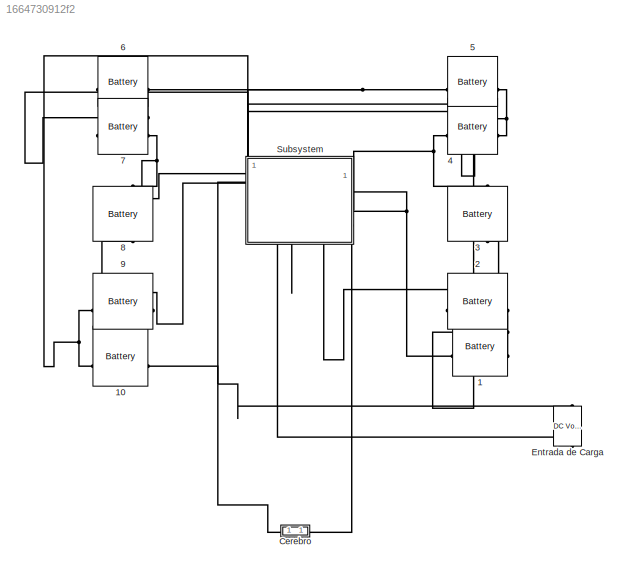
MODEL slx_1664730912f2
KIND model
CONFIG AbsTol = auto
CONFIG EnableMultiTasking = off
CONFIG FixedStep = auto
CONFIG MaxStep = auto
CONFIG MinStep = auto
CONFIG RelTol = 1e-3
CONFIG SampleTimeConstraint = Unconstrained
CONFIG SolverName = VariableStepAuto
CONFIG StartTime = 0.0
CONFIG StopTime = 10.0
BLOCK [Reference] 1  REF=batteryecm_lib/Battery
  LibrarySourceBlock = batt_lib/Cells/Battery
  SourceBlock = batteryecm_lib/Battery
  SourceType = Battery
BLOCK [Reference] 10  REF=batteryecm_lib/Battery
  LibrarySourceBlock = batt_lib/Cells/Battery
  SourceBlock = batteryecm_lib/Battery
  SourceType = Battery
BLOCK [Reference] 2  REF=batteryecm_lib/Battery
  LibrarySourceBlock = batt_lib/Cells/Battery
  NameLocation = top
  SourceBlock = batteryecm_lib/Battery
  SourceType = Battery
BLOCK [Reference] 3  REF=batteryecm_lib/Battery
  LibrarySourceBlock = batt_lib/Cells/Battery
  NameLocation = right
  SourceBlock = batteryecm_lib/Battery
  SourceType = Battery
BLOCK [Reference] 4  REF=batteryecm_lib/Battery
  LibrarySourceBlock = batt_lib/Cells/Battery
  SourceBlock = batteryecm_lib/Battery
  SourceType = Battery
BLOCK [Reference] 5  REF=batteryecm_lib/Battery
  LibrarySourceBlock = batt_lib/Cells/Battery
  NameLocation = top
  SourceBlock = batteryecm_lib/Battery
  SourceType = Battery
BLOCK [Reference] 6  REF=batteryecm_lib/Battery
  LibrarySourceBlock = batt_lib/Cells/Battery
  NameLocation = top
  SourceBlock = batteryecm_lib/Battery
  SourceType = Battery
BLOCK [Reference] 7  REF=batteryecm_lib/Battery
  LibrarySourceBlock = batt_lib/Cells/Battery
  SourceBlock = batteryecm_lib/Battery
  SourceType = Battery
BLOCK [Reference] 8  REF=batteryecm_lib/Battery
  LibrarySourceBlock = batt_lib/Cells/Battery
  NameLocation = right
  SourceBlock = batteryecm_lib/Battery
  SourceType = Battery
BLOCK [Reference] 9  REF=batteryecm_lib/Battery
  LibrarySourceBlock = batt_lib/Cells/Battery
  NameLocation = top
  SourceBlock = batteryecm_lib/Battery
  SourceType = Battery
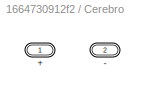
BLOCK [SubSystem] Cerebro
BLOCK [PMIOPort] Cerebro/+
  Side = Left
BLOCK [PMIOPort] Cerebro/-
  Port = 2
  Side = Right
BLOCK [Reference] Entrada de Carga  REF=fl_lib/Electrical/Electrical Sources/DC Voltage Source
  NameLocation = right
  SourceBlock = fl_lib/Electrical/Electrical Sources/DC Voltage Source
  SourceType = DC Voltage Source
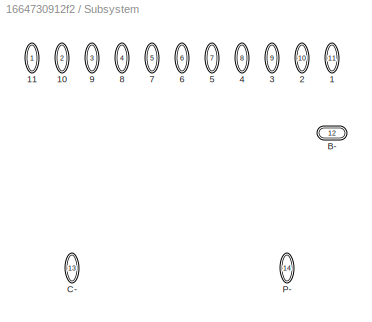
BLOCK [SubSystem] Subsystem
  PortSchema = {"entries":[{"content":{"sides":[{"content":{},"type":"ConnectorPlacement.EquallySpacedRectSide","uuid":"934cfeca-4efb-4867-8bd4-6afe9812654d"},{"content":{"connectorIds":["RConn1"],"side":"RIGHT"},"type":"ConnectorPlacement.EquallySpacedRectSide","uuid":"26a01779-e8e3-434e-8f21-746ce15bae26"},{"content":{"connectorIds":["LConn1","LConn2","LConn3","LConn4","LConn5","LConn6","LConn7","LConn8","LCon...<+481ch>
BLOCK [PMIOPort] Subsystem/1
  NameLocation = right
  Port = 11
  Side = Left
BLOCK [PMIOPort] Subsystem/10
  NameLocation = right
  Port = 2
  Side = Left
BLOCK [PMIOPort] Subsystem/11
  NameLocation = right
  Side = Left
BLOCK [PMIOPort] Subsystem/2
  NameLocation = right
  Port = 10
  Side = Left
BLOCK [PMIOPort] Subsystem/3
  NameLocation = right
  Port = 9
  Side = Left
BLOCK [PMIOPort] Subsystem/4
  NameLocation = right
  Port = 8
  Side = Left
BLOCK [PMIOPort] Subsystem/5
  NameLocation = right
  Port = 7
  Side = Left
BLOCK [PMIOPort] Subsystem/6
  NameLocation = right
  Port = 6
  Side = Left
BLOCK [PMIOPort] Subsystem/7
  NameLocation = right
  Port = 5
  Side = Left
BLOCK [PMIOPort] Subsystem/8
  NameLocation = right
  Port = 4
  Side = Left
BLOCK [PMIOPort] Subsystem/9
  NameLocation = right
  Port = 3
  Side = Left
BLOCK [PMIOPort] Subsystem/B-
  Port = 12
  Side = Right
BLOCK [PMIOPort] Subsystem/C-
  NameLocation = right
  Port = 13
  Side = Right
BLOCK [PMIOPort] Subsystem/P-
  NameLocation = right
  Port = 14
  Side = Right
PNET net1: 10:LConn1 -- Cerebro:LConn1 -- Entrada de Carga:LConn1 -- Subsystem:LConn1
PNET net2: 10:RConn1 -- 9:LConn1 -- Subsystem:LConn2
PNET net3: 1:LConn1 -- 2:RConn1 -- Subsystem:LConn10
PNET net4: 1:RConn1 -- Subsystem:LConn11 -- Subsystem:RConn1
PNET net5: 2:LConn1 -- 3:RConn1 -- Subsystem:LConn9
PNET net6: 3:LConn1 -- 4:RConn1 -- Subsystem:LConn8
PNET net7: 4:LConn1 -- 5:RConn1 -- Subsystem:LConn7
PNET net8: 5:LConn1 -- 6:RConn1 -- Subsystem:LConn6
PNET net9: 6:LConn1 -- 7:RConn1 -- Subsystem:LConn5
PNET net10: 7:LConn1 -- 8:LConn1 -- Subsystem:LConn4
PNET net11: 8:RConn1 -- 9:RConn1 -- Subsystem:LConn3
PLINE Cerebro:RConn1 -- Subsystem:RConn3
PLINE Entrada de Carga:RConn1 -- Subsystem:RConn2
note: PNET lines group multi-terminal physical nets as a canonical sorted terminal list (undirected conserving connections); 2-terminal nets keep the pairwise PLINE form
